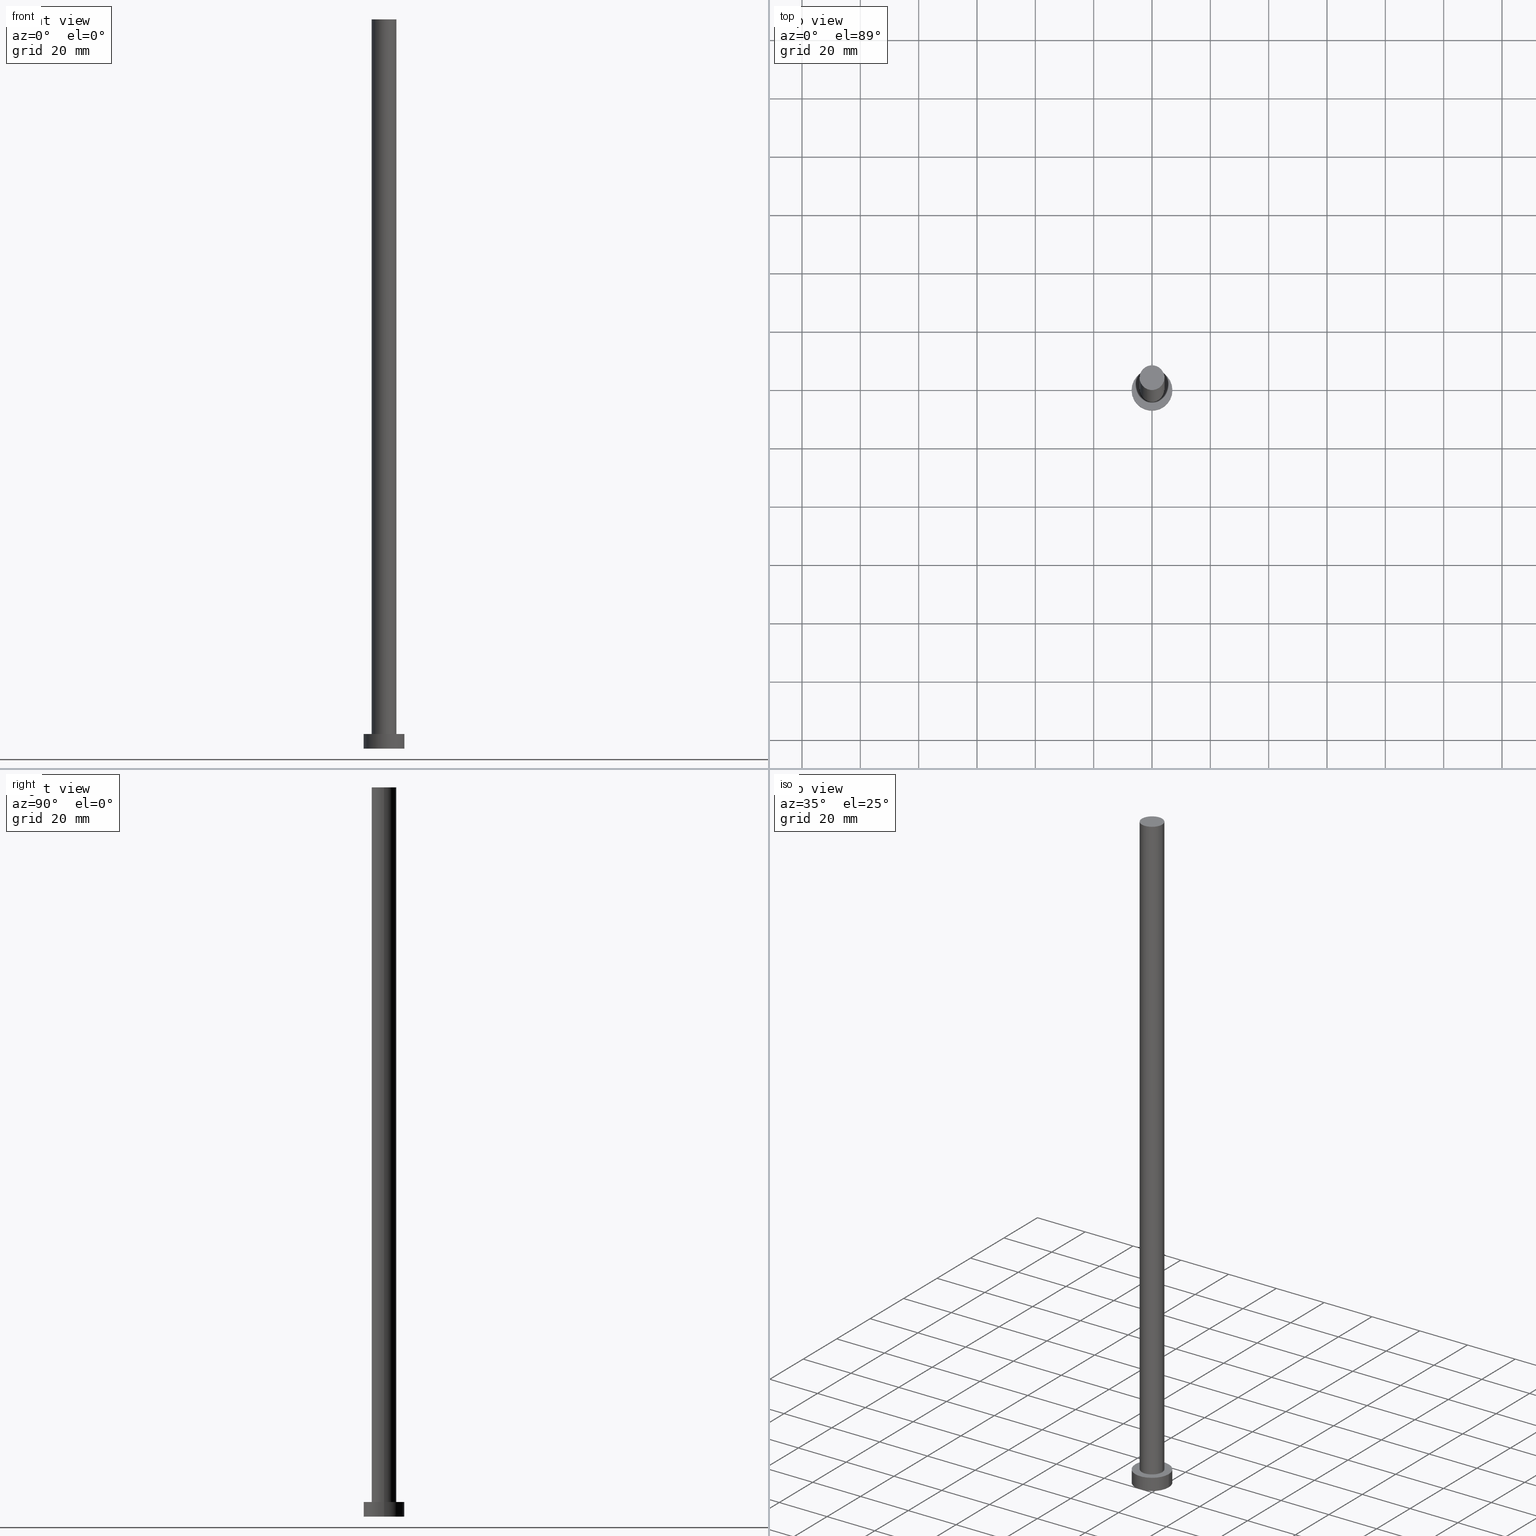
[diagram: canonical four-view strip — front | top / right | iso, engineering-drawing reading convention]
A machine part, canonical four-view strip (front | top / right | iso — engineering-drawing reading convention). The complete STEP part file that produces these views, byte-faithful:
ISO-10303-21;
HEADER;
FILE_DESCRIPTION (( 'STEP AP203' ),
    '1' );
FILE_NAME ('308f.STEP',
    '2023-02-12T11:10:24',
    ( '' ),
    ( '' ),
    'SwSTEP 2.0',
    'SolidWorks 2019',
    '' );
FILE_SCHEMA (( 'CONFIG_CONTROL_DESIGN' ));
ENDSEC;

DATA;
#1 = ORIENTED_EDGE ( 'NONE', *, *, #206, .F. ) ;
#2 = DIRECTION ( 'NONE',  ( -0.000000000000000000, -0.000000000000000000, -1.000000000000000000 ) ) ;
#3 =( NAMED_UNIT ( * ) PLANE_ANGLE_UNIT ( ) SI_UNIT ( $, .RADIAN. ) );
#4 = DIRECTION ( 'NONE',  ( -0.000000000000000000, -0.000000000000000000, -1.000000000000000000 ) ) ;
#5 = DATE_TIME_ROLE ( 'creation_date' ) ;
#6 = FACE_OUTER_BOUND ( 'NONE', #159, .T. ) ;
#7 = AXIS2_PLACEMENT_3D ( 'NONE', #181, #164, #225 ) ;
#8 = APPLICATION_CONTEXT ( 'configuration controlled 3d designs of mechanical parts and assemblies' ) ;
#9 = FACE_OUTER_BOUND ( 'NONE', #31, .T. ) ;
#10 = VERTEX_POINT ( 'NONE', #26 ) ;
#11 = ADVANCED_FACE ( 'NONE', ( #172 ), #138, .T. ) ;
#12 = AXIS2_PLACEMENT_3D ( 'NONE', #38, #233, #25 ) ;
#13 = PERSON_AND_ORGANIZATION ( #204, #163 ) ;
#14 = CARTESIAN_POINT ( 'NONE',  ( -7.000000000000000000, 0.000000000000000000, 5.000000000000000000 ) ) ;
#15 = CALENDAR_DATE ( 2023, 12, 2 ) ;
#16 = VERTEX_POINT ( 'NONE', #238 ) ;
#17 = ORIENTED_EDGE ( 'NONE', *, *, #108, .F. ) ;
#18 = DATE_AND_TIME ( #208, #112 ) ;
#19 = LOCAL_TIME ( 12, 10, 24.00000000000000000, #179 ) ;
#20 = DIRECTION ( 'NONE',  ( 1.000000000000000000, 0.000000000000000000, 0.000000000000000000 ) ) ;
#21 = CARTESIAN_POINT ( 'NONE',  ( 7.000000000000000000, 8.572527594031473190E-16, 0.000000000000000000 ) ) ;
#22 = DIRECTION ( 'NONE',  ( 0.000000000000000000, 0.000000000000000000, 1.000000000000000000 ) ) ;
#23 = ADVANCED_FACE ( 'NONE', ( #6 ), #155, .T. ) ;
#24 = PERSON_AND_ORGANIZATION_ROLE ( 'design_supplier' ) ;
#25 = DIRECTION ( 'NONE',  ( 1.000000000000000000, 0.000000000000000000, -0.000000000000000000 ) ) ;
#26 = CARTESIAN_POINT ( 'NONE',  ( 7.000000000000000000, 8.572527594031473190E-16, 5.000000000000000000 ) ) ;
#27 = ORIENTED_EDGE ( 'NONE', *, *, #227, .F. ) ;
#28 = CARTESIAN_POINT ( 'NONE',  ( 0.000000000000000000, 0.000000000000000000, 250.0000000000000000 ) ) ;
#29 = DATE_AND_TIME ( #96, #129 ) ;
#30 = DIRECTION ( 'NONE',  ( -0.000000000000000000, -0.000000000000000000, -1.000000000000000000 ) ) ;
#31 = EDGE_LOOP ( 'NONE', ( #107, #202 ) ) ;
#32 = APPROVAL ( #86, 'NEUR�EN�' ) ;
#33 = DIRECTION ( 'NONE',  ( 1.000000000000000000, 0.000000000000000000, 0.000000000000000000 ) ) ;
#34 = ORIENTED_EDGE ( 'NONE', *, *, #91, .T. ) ;
#35 = ADVANCED_FACE ( 'NONE', ( #192 ), #45, .F. ) ;
#36 = PERSON_AND_ORGANIZATION ( #204, #163 ) ;
#37 = CARTESIAN_POINT ( 'NONE',  ( 0.000000000000000000, 0.000000000000000000, 5.000000000000000000 ) ) ;
#38 = CARTESIAN_POINT ( 'NONE',  ( 0.000000000000000000, 0.000000000000000000, 0.000000000000000000 ) ) ;
#39 = CIRCLE ( 'NONE', #176, 7.000000000000000000 ) ;
#40 = CARTESIAN_POINT ( 'NONE',  ( 0.000000000000000000, 0.000000000000000000, 5.000000000000000000 ) ) ;
#41 = CARTESIAN_POINT ( 'NONE',  ( 0.000000000000000000, 0.000000000000000000, 250.0000000000000000 ) ) ;
#42 = CARTESIAN_POINT ( 'NONE',  ( 0.000000000000000000, 0.000000000000000000, 5.000000000000000000 ) ) ;
#43 = EDGE_CURVE ( 'NONE', #63, #249, #85, .T. ) ;
#44 = CALENDAR_DATE ( 2023, 12, 2 ) ;
#45 = PLANE ( 'NONE',  #12 ) ;
#46 = DIRECTION ( 'NONE',  ( 1.000000000000000000, 0.000000000000000000, 0.000000000000000000 ) ) ;
#47 = ADVANCED_FACE ( 'NONE', ( #61 ), #115, .T. ) ;
#48 = AXIS2_PLACEMENT_3D ( 'NONE', #28, #201, #33 ) ;
#49 = PERSON_AND_ORGANIZATION_ROLE ( 'creator' ) ;
#50 = FACE_BOUND ( 'NONE', #51, .T. ) ;
#51 = EDGE_LOOP ( 'NONE', ( #151, #82 ) ) ;
#52 = EDGE_LOOP ( 'NONE', ( #244, #248, #73, #120 ) ) ;
#53 = AXIS2_PLACEMENT_3D ( 'NONE', #97, #173, #100 ) ;
#54 = APPLICATION_CONTEXT ( 'configuration controlled 3d designs of mechanical parts and assemblies' ) ;
#55 = FACE_OUTER_BOUND ( 'NONE', #149, .T. ) ;
#56 = CC_DESIGN_PERSON_AND_ORGANIZATION_ASSIGNMENT ( #239, #143, ( #66 ) ) ;
#57 = PRODUCT_RELATED_PRODUCT_CATEGORY ( 'detail', '', ( #58 ) ) ;
#58 = PRODUCT ( '308f', '308f', '', ( #211 ) ) ;
#59 = EDGE_LOOP ( 'NONE', ( #212, #34, #175, #27 ) ) ;
#60 = APPROVAL_PERSON_ORGANIZATION ( #13, #32, #90 ) ;
#61 = FACE_OUTER_BOUND ( 'NONE', #182, .T. ) ;
#62 = DIRECTION ( 'NONE',  ( -1.000000000000000000, 0.000000000000000000, 0.000000000000000000 ) ) ;
#63 = VERTEX_POINT ( 'NONE', #68 ) ;
#64 = ADVANCED_FACE ( 'NONE', ( #50, #9 ), #125, .T. ) ;
#65 = DIRECTION ( 'NONE',  ( 0.000000000000000000, 0.000000000000000000, 1.000000000000000000 ) ) ;
#66 = SECURITY_CLASSIFICATION ( '', '', #122 ) ;
#67 = EDGE_CURVE ( 'NONE', #106, #126, #230, .T. ) ;
#68 = CARTESIAN_POINT ( 'NONE',  ( -4.250000000000000000, 0.000000000000000000, 5.000000000000000000 ) ) ;
#69 = ORIENTED_EDGE ( 'NONE', *, *, #180, .F. ) ;
#70 = PERSON_AND_ORGANIZATION ( #204, #163 ) ;
#71 = DIRECTION ( 'NONE',  ( -0.000000000000000000, -0.000000000000000000, -1.000000000000000000 ) ) ;
#72 = CARTESIAN_POINT ( 'NONE',  ( 0.000000000000000000, 0.000000000000000000, 250.0000000000000000 ) ) ;
#73 = ORIENTED_EDGE ( 'NONE', *, *, #206, .T. ) ;
#74 = CLOSED_SHELL ( 'NONE', ( #11, #23, #147, #64, #35, #47, #216 ) ) ;
#75 = CIRCLE ( 'NONE', #118, 7.000000000000000000 ) ;
#76 = ORIENTED_EDGE ( 'NONE', *, *, #231, .T. ) ;
#77 = ADVANCED_BREP_SHAPE_REPRESENTATION ( '308f', ( #79, #234 ), #186 ) ;
#78 = CIRCLE ( 'NONE', #104, 7.000000000000000000 ) ;
#79 = MANIFOLD_SOLID_BREP ( 'P�idat vysunut�m3', #74 ) ;
#80 = PRODUCT_DEFINITION_SHAPE ( 'NONE', 'NONE',  #83 ) ;
#81 = COORDINATED_UNIVERSAL_TIME_OFFSET ( 1, 0, .AHEAD. ) ;
#82 = ORIENTED_EDGE ( 'NONE', *, *, #235, .F. ) ;
#83 = PRODUCT_DEFINITION ( 'NEZN�M�', '', #217, #160 ) ;
#84 = VERTEX_POINT ( 'NONE', #174 ) ;
#85 = CIRCLE ( 'NONE', #53, 4.250000000000000000 ) ;
#86 = APPROVAL_STATUS ( 'not_yet_approved' ) ;
#87 = AXIS2_PLACEMENT_3D ( 'NONE', #72, #88, #103 ) ;
#88 = DIRECTION ( 'NONE',  ( 0.000000000000000000, 0.000000000000000000, 1.000000000000000000 ) ) ;
#89 = AXIS2_PLACEMENT_3D ( 'NONE', #92, #71, #221 ) ;
#90 = APPROVAL_ROLE ( '' ) ;
#91 = EDGE_CURVE ( 'NONE', #106, #249, #161, .T. ) ;
#92 = CARTESIAN_POINT ( 'NONE',  ( 0.000000000000000000, 0.000000000000000000, 250.0000000000000000 ) ) ;
#93 = LINE ( 'NONE', #170, #250 ) ;
#94 = LOCAL_TIME ( 12, 10, 24.00000000000000000, #105 ) ;
#95 =( LENGTH_UNIT ( ) NAMED_UNIT ( * ) SI_UNIT ( .MILLI., .METRE. ) );
#96 = CALENDAR_DATE ( 2023, 12, 2 ) ;
#97 = CARTESIAN_POINT ( 'NONE',  ( 0.000000000000000000, 0.000000000000000000, 5.000000000000000000 ) ) ;
#98 = CC_DESIGN_PERSON_AND_ORGANIZATION_ASSIGNMENT ( #127, #24, ( #217 ) ) ;
#99 = VECTOR ( 'NONE', #150, 1000.000000000000000 ) ;
#100 = DIRECTION ( 'NONE',  ( 1.000000000000000000, 0.000000000000000000, 0.000000000000000000 ) ) ;
#101 = CALENDAR_DATE ( 2023, 12, 2 ) ;
#102 = DIRECTION ( 'NONE',  ( 1.000000000000000000, 0.000000000000000000, -0.000000000000000000 ) ) ;
#103 = DIRECTION ( 'NONE',  ( 1.000000000000000000, 0.000000000000000000, 0.000000000000000000 ) ) ;
#104 = AXIS2_PLACEMENT_3D ( 'NONE', #37, #241, #46 ) ;
#105 = COORDINATED_UNIVERSAL_TIME_OFFSET ( 1, 0, .AHEAD. ) ;
#106 = VERTEX_POINT ( 'NONE', #229 ) ;
#107 = ORIENTED_EDGE ( 'NONE', *, *, #116, .T. ) ;
#108 = EDGE_CURVE ( 'NONE', #16, #130, #39, .T. ) ;
#109 = ORIENTED_EDGE ( 'NONE', *, *, #91, .F. ) ;
#110 = DATE_TIME_ROLE ( 'classification_date' ) ;
#111 = EDGE_CURVE ( 'NONE', #10, #84, #78, .T. ) ;
#112 = LOCAL_TIME ( 12, 10, 24.00000000000000000, #203 ) ;
#113 = APPROVAL_STATUS ( 'not_yet_approved' ) ;
#114 = ORIENTED_EDGE ( 'NONE', *, *, #227, .T. ) ;
#115 = CYLINDRICAL_SURFACE ( 'NONE', #89, 4.250000000000000000 ) ;
#116 = EDGE_CURVE ( 'NONE', #84, #10, #139, .T. ) ;
#117 = CIRCLE ( 'NONE', #165, 4.250000000000000000 ) ;
#118 = AXIS2_PLACEMENT_3D ( 'NONE', #228, #65, #141 ) ;
#119 = CARTESIAN_POINT ( 'NONE',  ( 0.000000000000000000, 0.000000000000000000, 0.000000000000000000 ) ) ;
#120 = ORIENTED_EDGE ( 'NONE', *, *, #108, .T. ) ;
#121 = DIRECTION ( 'NONE',  ( -1.000000000000000000, 0.000000000000000000, 0.000000000000000000 ) ) ;
#122 = SECURITY_CLASSIFICATION_LEVEL ( 'unclassified' ) ;
#123 = DIRECTION ( 'NONE',  ( -0.000000000000000000, -0.000000000000000000, -1.000000000000000000 ) ) ;
#124 = DIRECTION ( 'NONE',  ( 0.000000000000000000, 0.000000000000000000, 1.000000000000000000 ) ) ;
#125 = PLANE ( 'NONE',  #207 ) ;
#126 = VERTEX_POINT ( 'NONE', #187 ) ;
#127 = PERSON_AND_ORGANIZATION ( #204, #163 ) ;
#128 = DIRECTION ( 'NONE',  ( 0.000000000000000000, 0.000000000000000000, 1.000000000000000000 ) ) ;
#129 = LOCAL_TIME ( 12, 10, 24.00000000000000000, #81 ) ;
#130 = VERTEX_POINT ( 'NONE', #21 ) ;
#131 = UNCERTAINTY_MEASURE_WITH_UNIT (LENGTH_MEASURE( 1.000000000000000082E-05 ), #95, 'distance_accuracy_value', 'NONE');
#132 = ORIENTED_EDGE ( 'NONE', *, *, #43, .T. ) ;
#133 = PLANE ( 'NONE',  #7 ) ;
#134 = CC_DESIGN_PERSON_AND_ORGANIZATION_ASSIGNMENT ( #70, #49, ( #217 ) ) ;
#135 = DIRECTION ( 'NONE',  ( 1.000000000000000000, 0.000000000000000000, 0.000000000000000000 ) ) ;
#136 = PERSON_AND_ORGANIZATION_ROLE ( 'design_owner' ) ;
#137 = CYLINDRICAL_SURFACE ( 'NONE', #178, 7.000000000000000000 ) ;
#138 = CYLINDRICAL_SURFACE ( 'NONE', #153, 4.250000000000000000 ) ;
#139 = CIRCLE ( 'NONE', #199, 7.000000000000000000 ) ;
#140 = CC_DESIGN_APPROVAL ( #255, ( #66 ) ) ;
#141 = DIRECTION ( 'NONE',  ( 1.000000000000000000, 0.000000000000000000, 0.000000000000000000 ) ) ;
#142 = APPROVAL ( #113, 'NEUR�EN�' ) ;
#143 = PERSON_AND_ORGANIZATION_ROLE ( 'classification_officer' ) ;
#144 = CARTESIAN_POINT ( 'NONE',  ( 0.000000000000000000, 0.000000000000000000, 5.000000000000000000 ) ) ;
#145 = EDGE_CURVE ( 'NONE', #10, #130, #93, .T. ) ;
#146 = ORIENTED_EDGE ( 'NONE', *, *, #111, .F. ) ;
#147 = ADVANCED_FACE ( 'NONE', ( #236 ), #137, .T. ) ;
#148 = APPROVAL_DATE_TIME ( #18, #255 ) ;
#149 = EDGE_LOOP ( 'NONE', ( #252, #200 ) ) ;
#150 = DIRECTION ( 'NONE',  ( -0.000000000000000000, -0.000000000000000000, -1.000000000000000000 ) ) ;
#151 = ORIENTED_EDGE ( 'NONE', *, *, #43, .F. ) ;
#152 = VECTOR ( 'NONE', #30, 1000.000000000000000 ) ;
#153 = AXIS2_PLACEMENT_3D ( 'NONE', #41, #4, #62 ) ;
#154 = APPROVAL_PERSON_ORGANIZATION ( #185, #255, #253 ) ;
#155 = CYLINDRICAL_SURFACE ( 'NONE', #243, 7.000000000000000000 ) ;
#156 = DIRECTION ( 'NONE',  ( 0.000000000000000000, 0.000000000000000000, 1.000000000000000000 ) ) ;
#157 = DIRECTION ( 'NONE',  ( -1.000000000000000000, 0.000000000000000000, 0.000000000000000000 ) ) ;
#158 = APPROVAL_DATE_TIME ( #29, #142 ) ;
#159 = EDGE_LOOP ( 'NONE', ( #146, #194, #76, #1 ) ) ;
#160 = DESIGN_CONTEXT ( 'detailed design', #54, 'design' ) ;
#161 = LINE ( 'NONE', #198, #152 ) ;
#162 = DATE_AND_TIME ( #15, #19 ) ;
#163 = ORGANIZATION ( 'NEUR�EN�', 'NEUR�EN�', '' ) ;
#164 = DIRECTION ( 'NONE',  ( 0.000000000000000000, 0.000000000000000000, 1.000000000000000000 ) ) ;
#165 = AXIS2_PLACEMENT_3D ( 'NONE', #214, #188, #20 ) ;
#166 = PERSON_AND_ORGANIZATION ( #204, #163 ) ;
#167 = APPROVAL_ROLE ( '' ) ;
#168 = EDGE_LOOP ( 'NONE', ( #17, #215 ) ) ;
#169 =( NAMED_UNIT ( * ) SI_UNIT ( $, .STERADIAN. ) SOLID_ANGLE_UNIT ( ) );
#170 = CARTESIAN_POINT ( 'NONE',  ( 7.000000000000000000, 8.572527594031473190E-16, 5.000000000000000000 ) ) ;
#171 = CARTESIAN_POINT ( 'NONE',  ( 4.250000000000000000, 5.204748896376250699E-16, 5.000000000000000000 ) ) ;
#172 = FACE_OUTER_BOUND ( 'NONE', #59, .T. ) ;
#173 = DIRECTION ( 'NONE',  ( 0.000000000000000000, 0.000000000000000000, 1.000000000000000000 ) ) ;
#174 = CARTESIAN_POINT ( 'NONE',  ( -7.000000000000000000, 0.000000000000000000, 5.000000000000000000 ) ) ;
#175 = ORIENTED_EDGE ( 'NONE', *, *, #235, .T. ) ;
#176 = AXIS2_PLACEMENT_3D ( 'NONE', #184, #156, #135 ) ;
#177 = DIRECTION ( 'NONE',  ( -0.000000000000000000, -0.000000000000000000, -1.000000000000000000 ) ) ;
#178 = AXIS2_PLACEMENT_3D ( 'NONE', #40, #177, #157 ) ;
#179 = COORDINATED_UNIVERSAL_TIME_OFFSET ( 1, 0, .AHEAD. ) ;
#180 = EDGE_CURVE ( 'NONE', #126, #106, #213, .T. ) ;
#181 = CARTESIAN_POINT ( 'NONE',  ( 0.000000000000000000, 0.000000000000000000, 250.0000000000000000 ) ) ;
#182 = EDGE_LOOP ( 'NONE', ( #109, #69, #114, #132 ) ) ;
#183 = CC_DESIGN_PERSON_AND_ORGANIZATION_ASSIGNMENT ( #166, #136, ( #58 ) ) ;
#184 = CARTESIAN_POINT ( 'NONE',  ( 0.000000000000000000, 0.000000000000000000, 0.000000000000000000 ) ) ;
#185 = PERSON_AND_ORGANIZATION ( #204, #163 ) ;
#186 =( GEOMETRIC_REPRESENTATION_CONTEXT ( 3 ) GLOBAL_UNCERTAINTY_ASSIGNED_CONTEXT ( ( #131 ) ) GLOBAL_UNIT_ASSIGNED_CONTEXT ( ( #95, #3, #169 ) ) REPRESENTATION_CONTEXT ( 'NONE', 'WORKASPACE' ) );
#187 = CARTESIAN_POINT ( 'NONE',  ( -4.250000000000000000, 0.000000000000000000, 250.0000000000000000 ) ) ;
#188 = DIRECTION ( 'NONE',  ( 0.000000000000000000, 0.000000000000000000, 1.000000000000000000 ) ) ;
#189 = CC_DESIGN_DATE_AND_TIME_ASSIGNMENT ( #193, #110, ( #66 ) ) ;
#190 = DIRECTION ( 'NONE',  ( 1.000000000000000000, 0.000000000000000000, 0.000000000000000000 ) ) ;
#191 = DIRECTION ( 'NONE',  ( 1.000000000000000000, 0.000000000000000000, 0.000000000000000000 ) ) ;
#192 = FACE_OUTER_BOUND ( 'NONE', #168, .T. ) ;
#193 = DATE_AND_TIME ( #44, #224 ) ;
#194 = ORIENTED_EDGE ( 'NONE', *, *, #145, .T. ) ;
#195 = DIRECTION ( 'NONE',  ( -0.000000000000000000, -0.000000000000000000, -1.000000000000000000 ) ) ;
#196 = CC_DESIGN_APPROVAL ( #142, ( #83 ) ) ;
#197 = PERSON_AND_ORGANIZATION_ROLE ( 'creator' ) ;
#198 = CARTESIAN_POINT ( 'NONE',  ( 4.250000000000000000, 5.204748896376250699E-16, 250.0000000000000000 ) ) ;
#199 = AXIS2_PLACEMENT_3D ( 'NONE', #42, #124, #190 ) ;
#200 = ORIENTED_EDGE ( 'NONE', *, *, #67, .T. ) ;
#201 = DIRECTION ( 'NONE',  ( 0.000000000000000000, 0.000000000000000000, 1.000000000000000000 ) ) ;
#202 = ORIENTED_EDGE ( 'NONE', *, *, #111, .T. ) ;
#203 = COORDINATED_UNIVERSAL_TIME_OFFSET ( 1, 0, .AHEAD. ) ;
#204 = PERSON ( 'NEUR�EN�', 'NEUR�EN�', 'NEUR�EN�', ('NEUR�EN�'), ('NEUR�EN�'), ('NEUR�EN�') ) ;
#205 = APPROVAL_STATUS ( 'not_yet_approved' ) ;
#206 = EDGE_CURVE ( 'NONE', #84, #16, #222, .T. ) ;
#207 = AXIS2_PLACEMENT_3D ( 'NONE', #144, #128, #102 ) ;
#208 = CALENDAR_DATE ( 2023, 12, 2 ) ;
#209 = APPROVAL_PERSON_ORGANIZATION ( #36, #142, #167 ) ;
#210 = LINE ( 'NONE', #251, #99 ) ;
#211 = MECHANICAL_CONTEXT ( 'NONE', #8, 'mechanical' ) ;
#212 = ORIENTED_EDGE ( 'NONE', *, *, #67, .F. ) ;
#213 = CIRCLE ( 'NONE', #87, 4.250000000000000000 ) ;
#214 = CARTESIAN_POINT ( 'NONE',  ( 0.000000000000000000, 0.000000000000000000, 5.000000000000000000 ) ) ;
#215 = ORIENTED_EDGE ( 'NONE', *, *, #231, .F. ) ;
#216 = ADVANCED_FACE ( 'NONE', ( #55 ), #133, .T. ) ;
#217 = PRODUCT_DEFINITION_FORMATION_WITH_SPECIFIED_SOURCE ( 'LIBOVOLN�', '', #58, .NOT_KNOWN. ) ;
#218 = COORDINATED_UNIVERSAL_TIME_OFFSET ( 1, 0, .AHEAD. ) ;
#219 = CC_DESIGN_SECURITY_CLASSIFICATION ( #66, ( #217 ) ) ;
#220 = PERSON_AND_ORGANIZATION ( #204, #163 ) ;
#221 = DIRECTION ( 'NONE',  ( -1.000000000000000000, 0.000000000000000000, 0.000000000000000000 ) ) ;
#222 = LINE ( 'NONE', #14, #254 ) ;
#223 = CC_DESIGN_DATE_AND_TIME_ASSIGNMENT ( #242, #5, ( #83 ) ) ;
#224 = LOCAL_TIME ( 12, 10, 24.00000000000000000, #218 ) ;
#225 = DIRECTION ( 'NONE',  ( 1.000000000000000000, 0.000000000000000000, -0.000000000000000000 ) ) ;
#226 = SHAPE_DEFINITION_REPRESENTATION ( #80, #77 ) ;
#227 = EDGE_CURVE ( 'NONE', #126, #63, #210, .T. ) ;
#228 = CARTESIAN_POINT ( 'NONE',  ( 0.000000000000000000, 0.000000000000000000, 0.000000000000000000 ) ) ;
#229 = CARTESIAN_POINT ( 'NONE',  ( 4.250000000000000000, 5.204748896376250699E-16, 250.0000000000000000 ) ) ;
#230 = CIRCLE ( 'NONE', #48, 4.250000000000000000 ) ;
#231 = EDGE_CURVE ( 'NONE', #130, #16, #75, .T. ) ;
#232 = APPLICATION_PROTOCOL_DEFINITION ( 'international standard', 'config_control_design', 1994, #54 ) ;
#233 = DIRECTION ( 'NONE',  ( 0.000000000000000000, 0.000000000000000000, 1.000000000000000000 ) ) ;
#234 = AXIS2_PLACEMENT_3D ( 'NONE', #119, #22, #191 ) ;
#235 = EDGE_CURVE ( 'NONE', #249, #63, #117, .T. ) ;
#236 = FACE_OUTER_BOUND ( 'NONE', #52, .T. ) ;
#237 = APPLICATION_PROTOCOL_DEFINITION ( 'international standard', 'config_control_design', 1994, #8 ) ;
#238 = CARTESIAN_POINT ( 'NONE',  ( -7.000000000000000000, 0.000000000000000000, 0.000000000000000000 ) ) ;
#239 = PERSON_AND_ORGANIZATION ( #204, #163 ) ;
#240 = CARTESIAN_POINT ( 'NONE',  ( 0.000000000000000000, 0.000000000000000000, 5.000000000000000000 ) ) ;
#241 = DIRECTION ( 'NONE',  ( 0.000000000000000000, 0.000000000000000000, 1.000000000000000000 ) ) ;
#242 = DATE_AND_TIME ( #101, #94 ) ;
#243 = AXIS2_PLACEMENT_3D ( 'NONE', #240, #123, #121 ) ;
#244 = ORIENTED_EDGE ( 'NONE', *, *, #145, .F. ) ;
#245 = CC_DESIGN_APPROVAL ( #32, ( #217 ) ) ;
#246 = CC_DESIGN_PERSON_AND_ORGANIZATION_ASSIGNMENT ( #220, #197, ( #83 ) ) ;
#247 = APPROVAL_DATE_TIME ( #162, #32 ) ;
#248 = ORIENTED_EDGE ( 'NONE', *, *, #116, .F. ) ;
#249 = VERTEX_POINT ( 'NONE', #171 ) ;
#250 = VECTOR ( 'NONE', #2, 1000.000000000000000 ) ;
#251 = CARTESIAN_POINT ( 'NONE',  ( -4.250000000000000000, 0.000000000000000000, 250.0000000000000000 ) ) ;
#252 = ORIENTED_EDGE ( 'NONE', *, *, #180, .T. ) ;
#253 = APPROVAL_ROLE ( '' ) ;
#254 = VECTOR ( 'NONE', #195, 1000.000000000000000 ) ;
#255 = APPROVAL ( #205, 'NEUR�EN�' ) ;
ENDSEC;
END-ISO-10303-21;
